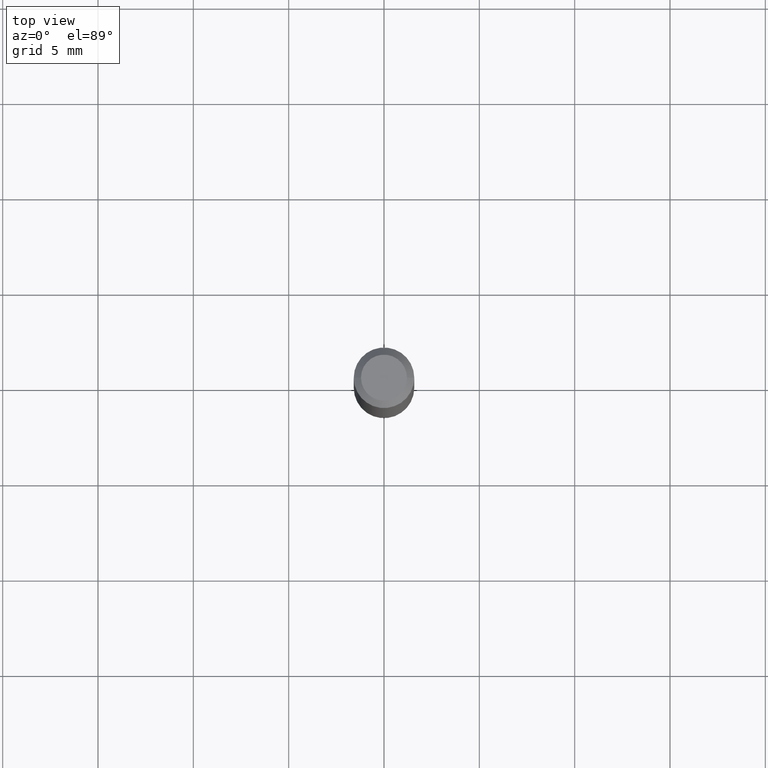
[diagram: clean part render]
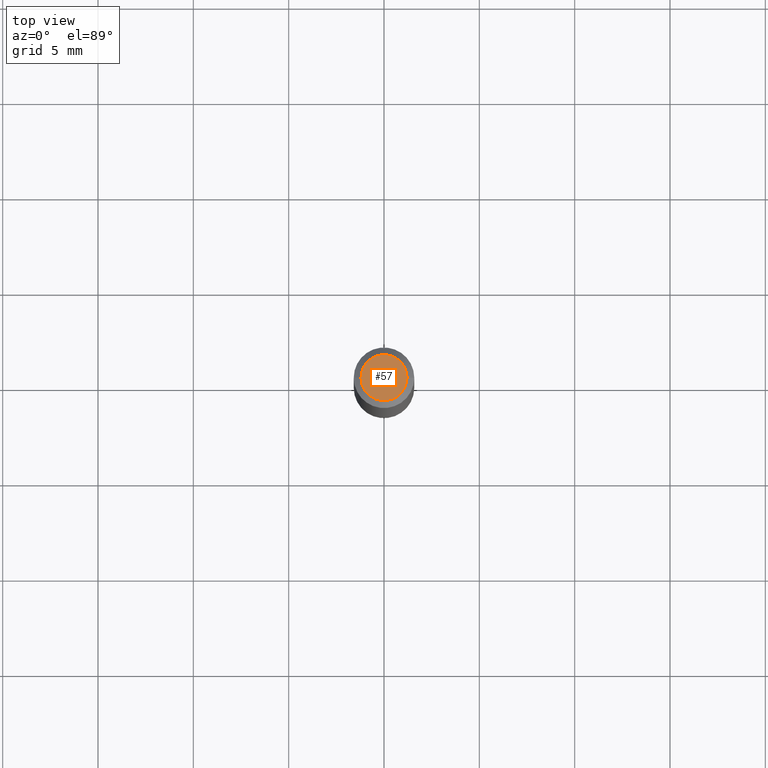
[diagram: same view with one face highlighted and labeled with its STEP entity id]
A machine part, top view. The second image highlights one B-rep face of the part: STEP entity #57.
In plain terms, the highlighted planar face has unit normal (0, -0, -1).
Its self-contained STEP definition (entity closure, byte-faithful):
#16 = DIRECTION ( 'NONE',  ( 1.000000000000000000, -6.982962677686267499E-15, 4.852736867747366768E-29 ) ) ;
#57 = ADVANCED_FACE ( 'NONE', ( #241 ), #382, .F. ) ;
#69 = CARTESIAN_POINT ( 'NONE',  ( -0.04749999999999999362, 3.578768372314198180E-16, -7.359664656873739018E-16 ) ) ;
#71 = EDGE_CURVE ( 'NONE', #441, #225, #156, .T. ) ;
#115 = CARTESIAN_POINT ( 'NONE',  ( 1.799783034236790585E-44, -2.569613180961801607E-30, -7.359664656873714366E-16 ) ) ;
#124 = ORIENTED_EDGE ( 'NONE', *, *, #71, .T. ) ;
#133 = CARTESIAN_POINT ( 'NONE',  ( 1.799783034236790585E-44, -2.569613180961801607E-30, -7.359664656873714366E-16 ) ) ;
#142 = DIRECTION ( 'NONE',  ( -1.000000000000000000, 6.982962677686265922E-15, -4.876176775795935793E-29 ) ) ;
#156 = CIRCLE ( 'NONE', #320, 0.04749999999999999362 ) ;
#181 = CARTESIAN_POINT ( 'NONE',  ( 3.316907271900976096E-16, 0.04749999999999999362, -5.338285964387351640E-16 ) ) ;
#210 = DIRECTION ( 'NONE',  ( 2.438088387897960049E-29, -3.491481338843145188E-15, -1.000000000000000000 ) ) ;
#221 = DIRECTION ( 'NONE',  ( 1.000000000000000000, -6.982962677686267499E-15, 4.852736867747366768E-29 ) ) ;
#225 = VERTEX_POINT ( 'NONE', #266 ) ;
#241 = FACE_OUTER_BOUND ( 'NONE', #414, .T. ) ;
#248 = EDGE_CURVE ( 'NONE', #225, #441, #418, .T. ) ;
#266 = CARTESIAN_POINT ( 'NONE',  ( 0.04749999999999999362, -4.035134999187590949E-16, -7.359664656873688728E-16 ) ) ;
#320 = AXIS2_PLACEMENT_3D ( 'NONE', #115, #426, #221 ) ;
#370 = ORIENTED_EDGE ( 'NONE', *, *, #248, .T. ) ;
#382 = PLANE ( 'NONE',  #409 ) ;
#409 = AXIS2_PLACEMENT_3D ( 'NONE', #181, #210, #142 ) ;
#414 = EDGE_LOOP ( 'NONE', ( #124, #370 ) ) ;
#418 = CIRCLE ( 'NONE', #457, 0.04749999999999999362 ) ;
#426 = DIRECTION ( 'NONE',  ( -2.445468806185136597E-29, 3.491481338843145583E-15, 1.000000000000000000 ) ) ;
#441 = VERTEX_POINT ( 'NONE', #69 ) ;
#446 = DIRECTION ( 'NONE',  ( -2.445468806185136597E-29, 3.491481338843145583E-15, 1.000000000000000000 ) ) ;
#457 = AXIS2_PLACEMENT_3D ( 'NONE', #133, #446, #16 ) ;